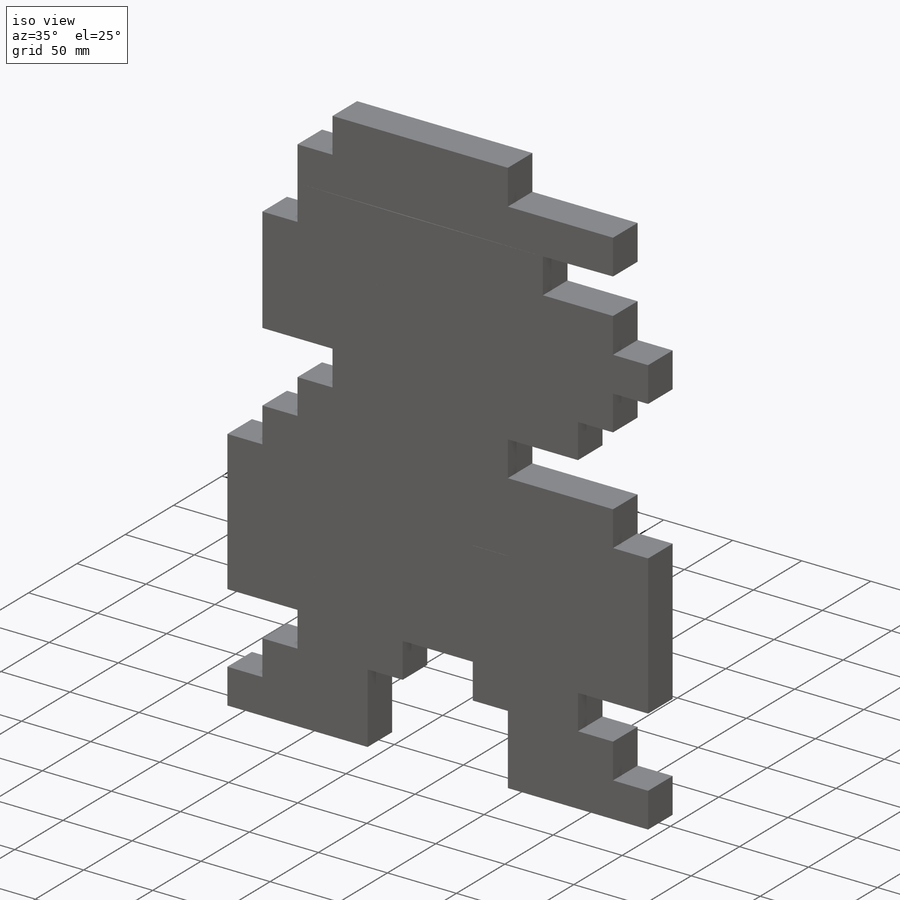
[diagram: iso view]
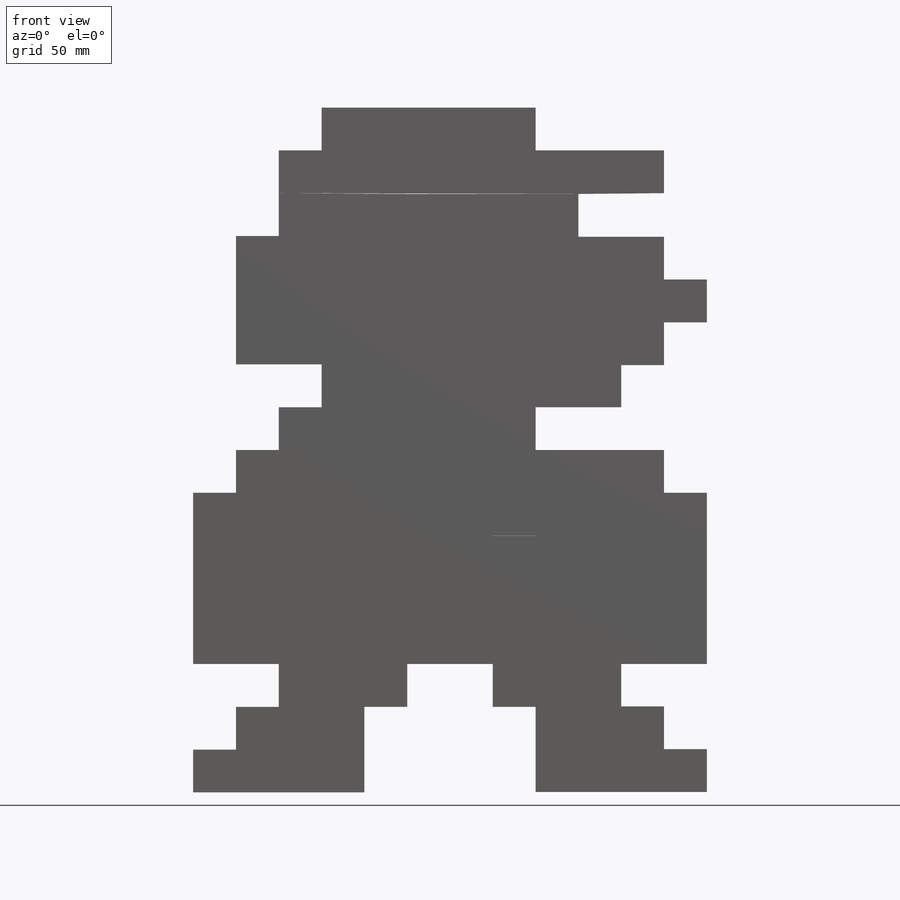
[diagram: front view]
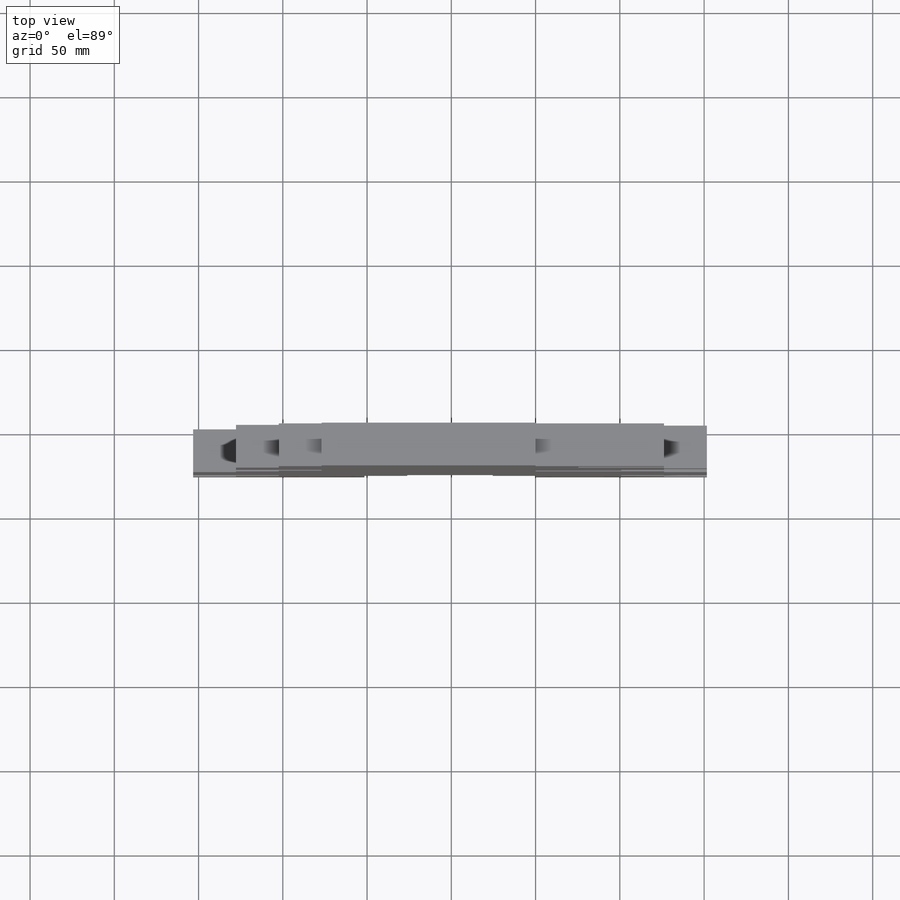
[diagram: top view]
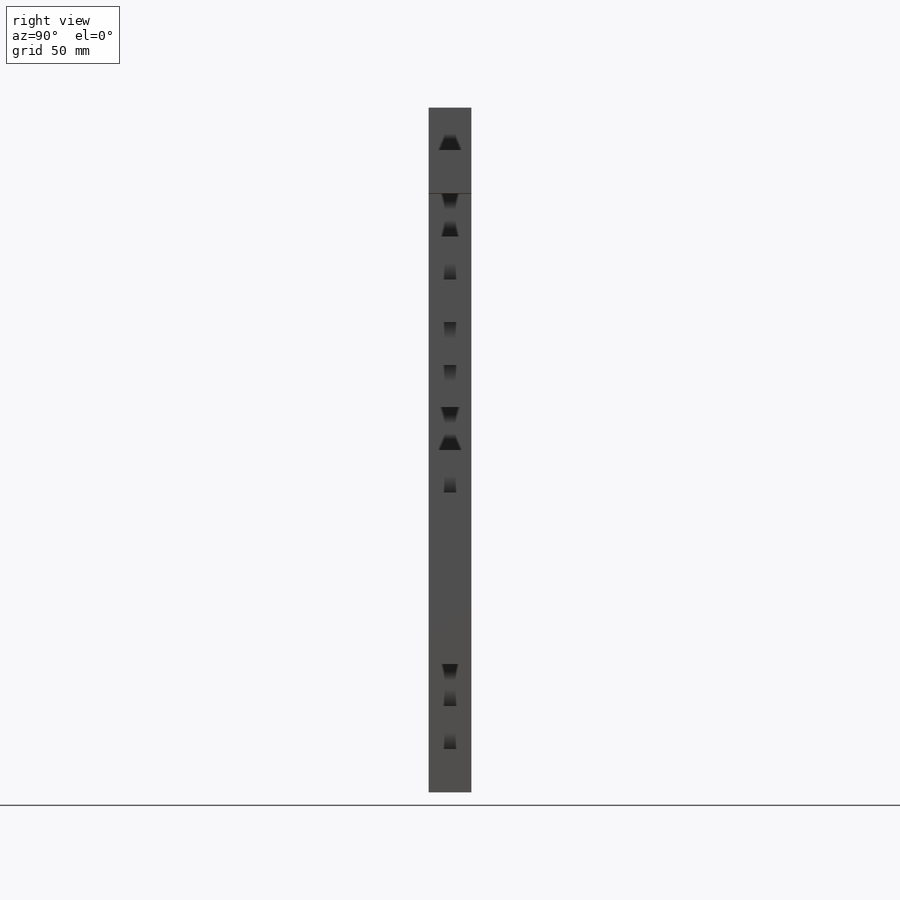
[diagram: right view]
SOLIDWORKS PART (.sldprt)
format: sldprt  version: not decoded by parser v0  size: 547,840 bytes
history: native  units: mm
features: sketch x17, extrude x17, material x1 (+13 scaffold rows collapsed)
feature tree (48):
  scaffold x13  (default folders/planes/origin — collapsed)
  material  "Material <not specified>"
  sketch  "Sketch1"  dims[D1=50.8mm]
  extrude  "Boss-Extrude1"  Depth=25.4mm
  sketch  "Sketch2"  dims[D1=50.8mm]
  extrude  "Boss-Extrude2"  Depth=25.4mm
  sketch  "Sketch3"  dims[D1=25.4mm]
  extrude  "Boss-Extrude10"  Depth=25.4mm
  sketch  "Sketch6"  dims[D1=177.8mm]
  extrude  "Boss-Extrude12"  Depth=25.4mm
  sketch  "Sketch7"  dims[D1=~24.942601mm]
  extrude  "Boss-Extrude13"  Depth=25.4mm
  sketch  "Sketch8"  dims[D1=50.8mm]
  extrude  "Boss-Extrude14"  Depth=25.4mm
  sketch  "Sketch9"  dims[D1=25.4mm]
  extrude  "Boss-Extrude15"  Depth=25.4mm
  sketch  "Sketch10"  dims[D1=76.2mm]
  extrude  "Boss-Extrude16"  Depth=25.4mm
  sketch  "Sketch11"  dims[D1=25.4mm]
  extrude  "Boss-Extrude17"  Depth=25.4mm
  sketch  "Sketch12"  dims[D1=25.4mm]
  sketch  "Sketch13"  dims[D1=50.8mm]
  extrude  "Boss-Extrude26"  Depth=25.4mm
  sketch  "Sketch23"  dims[D1=25.4mm]
  extrude  "Boss-Extrude35"  Depth=25.4mm
  extrude  "Boss-Extrude36"  Depth=25.4mm
  sketch  "Sketch24"  dims[D1=50.8mm]
  extrude  "Boss-Extrude37"  Depth=25.4mm
  sketch  "Sketch25"  dims[D1=101.6mm]
  extrude  "Boss-Extrude38"  Depth=25.4mm
  sketch  "Sketch26"  dims[D1=101.6mm]
  extrude  "Boss-Extrude39"  Depth=25.4mm
  sketch  "Sketch27"  dims[D1=25.4mm]
  extrude  "Boss-Extrude40"  Depth=25.4mm
  sketch  "Sketch28"  dims[D1=50.8mm]
  extrude  "Boss-Extrude41"  Depth=25.4mm
decode coverage: 34 of 34 modeling features carry decoded parameters
note: ~ marks probable driven/reference dimensions
note: suppression state not decoded; provenance and decode notes live in map.json
